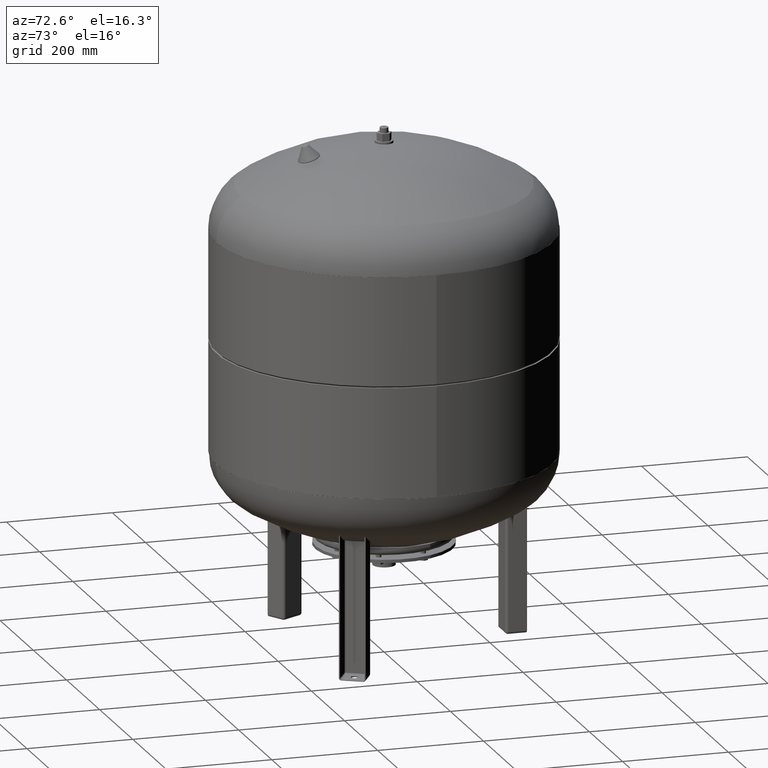
[diagram: clean part render]
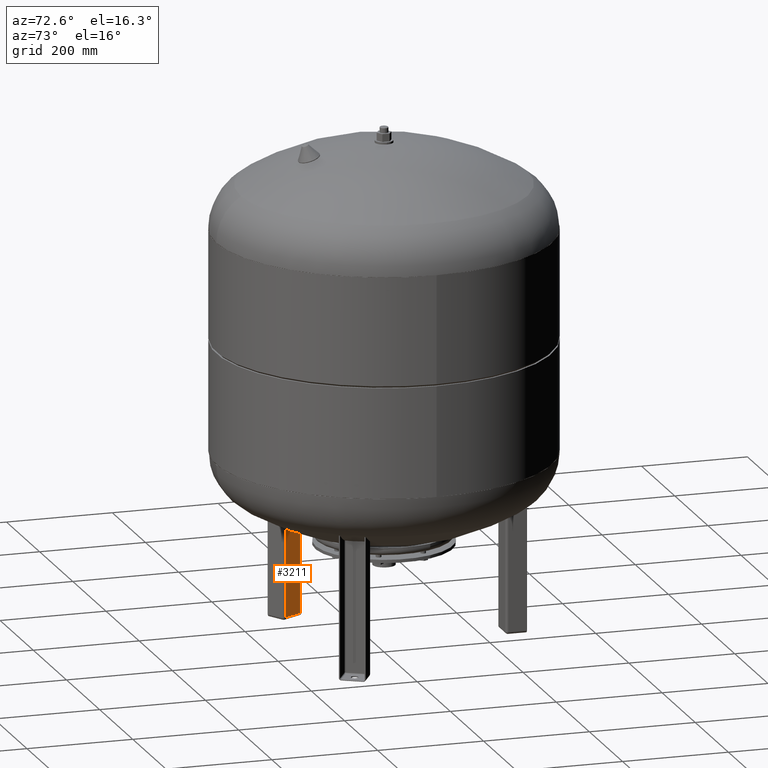
[diagram: same view with one face highlighted and labeled with its STEP entity id]
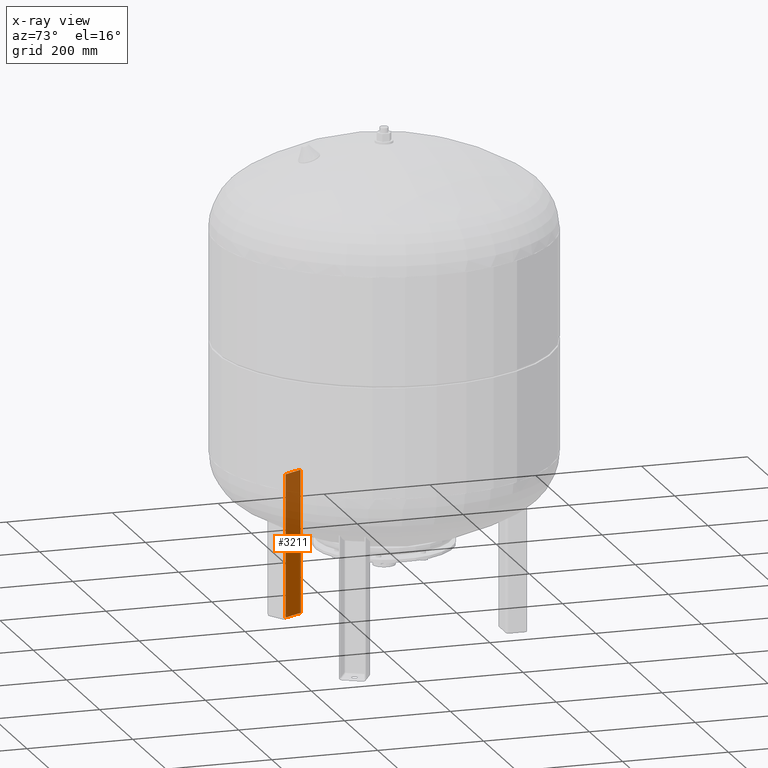
[diagram: x-ray of the same camera — body ghosted, the highlighted face saturated]
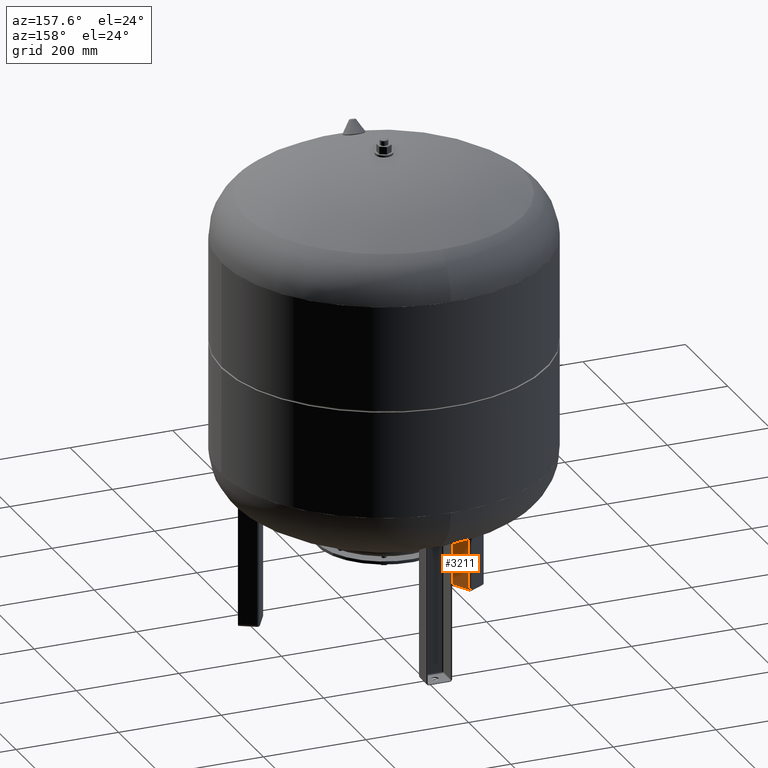
[diagram: same view with one face highlighted and labeled with its STEP entity id]
A machine part, auxiliary view. The second image highlights one B-rep face of the part: STEP entity #3211.
The next image is the same camera in x-ray: the body ghosted, the highlighted face saturated — about 42% of this face is hidden behind the body in this view.
A second angle (auxiliary view) of the same face is appended — the face is thin or edge-on in the first view.
In plain terms, the highlighted planar face has unit normal (0.866, 0.5, -0).
Its self-contained STEP definition (entity closure, byte-faithful):
#2395=CARTESIAN_POINT('',(-182.690652342037650,-128.570508075688790,274.0));
#2396=VERTEX_POINT('',#2395);
#2404=CARTESIAN_POINT('',(-202.690652342037620,-93.929491924311236,274.0));
#2405=VERTEX_POINT('',#2404);
#2406=CARTESIAN_POINT('',(-202.690652342037620,-93.929491924311236,274.0));
#2407=DIRECTION('',(0.499999999999999,-0.866025403784439,0.0));
#2408=VECTOR('',#2407,39.999999999999993);
#2409=LINE('',#2406,#2408);
#2410=EDGE_CURVE('',#2405,#2396,#2409,.T.);
#3076=CARTESIAN_POINT('',(-202.690652342037620,-93.929491924311236,4.999999999999996));
#3077=VERTEX_POINT('',#3076);
#3085=CARTESIAN_POINT('',(-182.690652342037650,-128.570508075688790,5.000000000000004));
#3086=VERTEX_POINT('',#3085);
#3087=CARTESIAN_POINT('',(-202.690652342037620,-93.929491924311236,4.999999999999996));
#3088=DIRECTION('',(0.499999999999999,-0.866025403784439,1.776357E-016));
#3089=VECTOR('',#3088,39.999999999999993);
#3090=LINE('',#3087,#3089);
#3091=EDGE_CURVE('',#3077,#3086,#3090,.T.);
#3179=CARTESIAN_POINT('',(-182.690652342037650,-128.570508075688790,5.000000000000004));
#3180=DIRECTION('',(0.0,0.0,1.0));
#3181=VECTOR('',#3180,269.0);
#3182=LINE('',#3179,#3181);
#3183=EDGE_CURVE('',#3086,#2396,#3182,.T.);
#3195=CARTESIAN_POINT('',(-205.190652342037620,-89.599364905389038,-4.592425E-015));
#3196=DIRECTION('',(0.866025403784439,0.500000000000000,-5.710451E-032));
#3197=DIRECTION('',(-0.500000000000000,0.866025403784439,-1.836970E-016));
#3198=AXIS2_PLACEMENT_3D('',#3195,#3196,#3197);
#3199=PLANE('',#3198);
#3200=ORIENTED_EDGE('',*,*,#3091,.F.);
#3201=CARTESIAN_POINT('',(-202.690652342037620,-93.929491924311236,4.999999999999996));
#3202=DIRECTION('',(0.0,0.0,1.0));
#3203=VECTOR('',#3202,269.0);
#3204=LINE('',#3201,#3203);
#3205=EDGE_CURVE('',#3077,#2405,#3204,.T.);
#3206=ORIENTED_EDGE('',*,*,#3205,.T.);
#3207=ORIENTED_EDGE('',*,*,#2410,.T.);
#3208=ORIENTED_EDGE('',*,*,#3183,.F.);
#3209=EDGE_LOOP('',(#3200,#3206,#3207,#3208));
#3210=FACE_OUTER_BOUND('',#3209,.T.);
#3211=ADVANCED_FACE('',(#3210),#3199,.T.);